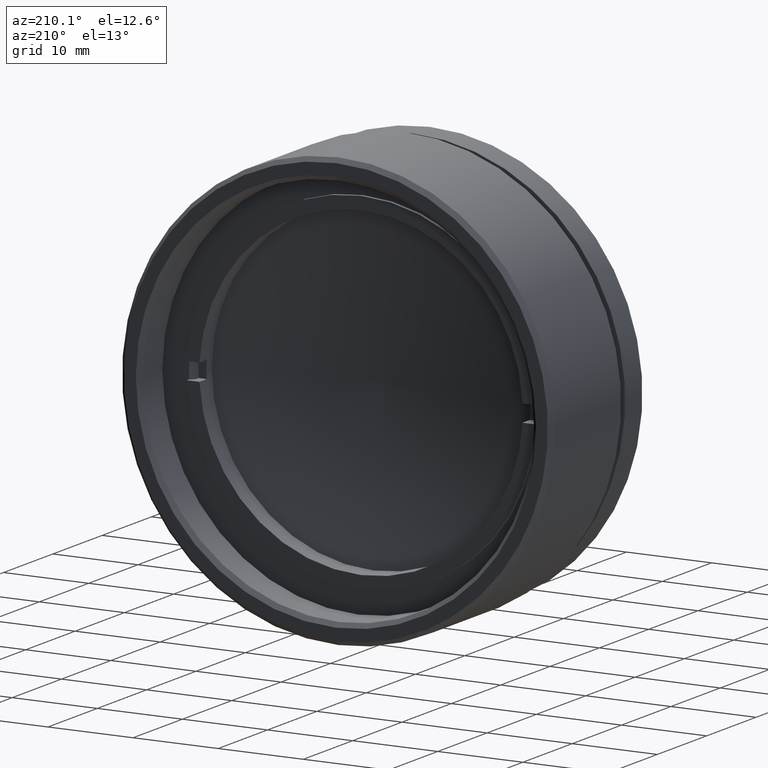
[diagram: clean part render]
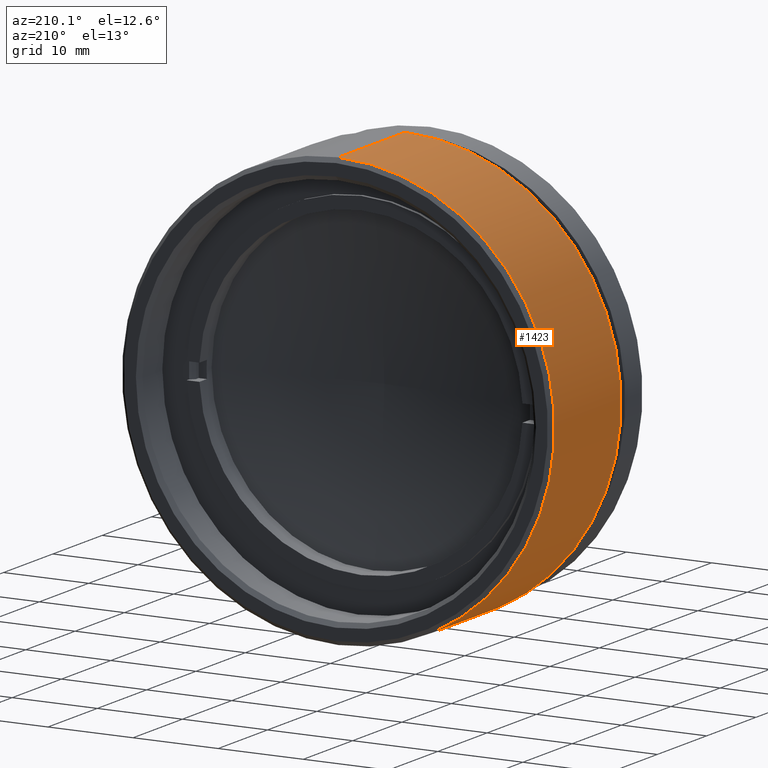
[diagram: same view with one face highlighted and labeled with its STEP entity id]
A machine part, auxiliary view. The second image highlights one B-rep face of the part: STEP entity #1423.
In plain terms, the highlighted cylindrical surface (partial cylindrical patch) has radius 25.4 mm, axis along (0, -1, 0).
Its self-contained STEP definition (entity closure, byte-faithful):
#54 = AXIS2_PLACEMENT_3D ( 'NONE', #794, #935, #1329 ) ;
#103 = ORIENTED_EDGE ( 'NONE', *, *, #255, .T. ) ;
#139 = CIRCLE ( 'NONE', #54, 25.39999999999999858 ) ;
#167 = ORIENTED_EDGE ( 'NONE', *, *, #1411, .T. ) ;
#206 = LINE ( 'NONE', #882, #659 ) ;
#210 = AXIS2_PLACEMENT_3D ( 'NONE', #1224, #1237, #1496 ) ;
#230 = ORIENTED_EDGE ( 'NONE', *, *, #1592, .F. ) ;
#255 = EDGE_CURVE ( 'NONE', #513, #1594, #139, .T. ) ;
#316 = DIRECTION ( 'NONE',  ( 0.000000000000000000, -1.000000000000000000, 0.000000000000000000 ) ) ;
#354 = DIRECTION ( 'NONE',  ( 0.000000000000000000, 0.000000000000000000, -1.000000000000000000 ) ) ;
#513 = VERTEX_POINT ( 'NONE', #551 ) ;
#551 = CARTESIAN_POINT ( 'NONE',  ( -8.905217641199437040, -3.498993789101623175, 52.05036394347455087 ) ) ;
#606 = ORIENTED_EDGE ( 'NONE', *, *, #735, .F. ) ;
#659 = VECTOR ( 'NONE', #316, 1000.000000000000000 ) ;
#703 = CYLINDRICAL_SURFACE ( 'NONE', #210, 25.39999999999999858 ) ;
#735 = EDGE_CURVE ( 'NONE', #513, #1155, #206, .T. ) ;
#774 = CARTESIAN_POINT ( 'NONE',  ( -8.905217641199440592, -16.99899378910162184, 52.05036394347455087 ) ) ;
#794 = CARTESIAN_POINT ( 'NONE',  ( -8.905217641199440592, -3.498993789101623175, 26.65036394347454873 ) ) ;
#882 = CARTESIAN_POINT ( 'NONE',  ( -8.905217641199437040, -22.49899378910162184, 52.05036394347455087 ) ) ;
#935 = DIRECTION ( 'NONE',  ( 0.000000000000000000, -1.000000000000000000, 0.000000000000000000 ) ) ;
#955 = FACE_OUTER_BOUND ( 'NONE', #1657, .T. ) ;
#972 = CARTESIAN_POINT ( 'NONE',  ( -8.905217641199440592, -22.49899378910162184, 1.250363943474549266 ) ) ;
#1104 = LINE ( 'NONE', #972, #1718 ) ;
#1146 = CARTESIAN_POINT ( 'NONE',  ( -8.905217641199440592, -16.99899378910162184, 26.65036394347454873 ) ) ;
#1155 = VERTEX_POINT ( 'NONE', #774 ) ;
#1211 = CARTESIAN_POINT ( 'NONE',  ( -8.905217641199437040, -16.99899378910162184, 1.250363943474549266 ) ) ;
#1224 = CARTESIAN_POINT ( 'NONE',  ( -8.905217641199440592, -22.49899378910162184, 26.65036394347454873 ) ) ;
#1237 = DIRECTION ( 'NONE',  ( 0.000000000000000000, -1.000000000000000000, 0.000000000000000000 ) ) ;
#1329 = DIRECTION ( 'NONE',  ( 0.000000000000000000, 0.000000000000000000, -1.000000000000000000 ) ) ;
#1352 = DIRECTION ( 'NONE',  ( 0.000000000000000000, -1.000000000000000000, 0.000000000000000000 ) ) ;
#1369 = VERTEX_POINT ( 'NONE', #1211 ) ;
#1411 = EDGE_CURVE ( 'NONE', #1594, #1369, #1104, .T. ) ;
#1423 = ADVANCED_FACE ( 'NONE', ( #955 ), #703, .T. ) ;
#1496 = DIRECTION ( 'NONE',  ( 0.000000000000000000, 0.000000000000000000, -1.000000000000000000 ) ) ;
#1515 = AXIS2_PLACEMENT_3D ( 'NONE', #1146, #1546, #354 ) ;
#1546 = DIRECTION ( 'NONE',  ( 0.000000000000000000, -1.000000000000000000, 0.000000000000000000 ) ) ;
#1592 = EDGE_CURVE ( 'NONE', #1155, #1369, #1711, .T. ) ;
#1594 = VERTEX_POINT ( 'NONE', #1644 ) ;
#1644 = CARTESIAN_POINT ( 'NONE',  ( -8.905217641199440592, -3.498993789101623175, 1.250363943474549266 ) ) ;
#1657 = EDGE_LOOP ( 'NONE', ( #606, #103, #167, #230 ) ) ;
#1711 = CIRCLE ( 'NONE', #1515, 25.39999999999999858 ) ;
#1718 = VECTOR ( 'NONE', #1352, 1000.000000000000000 ) ;